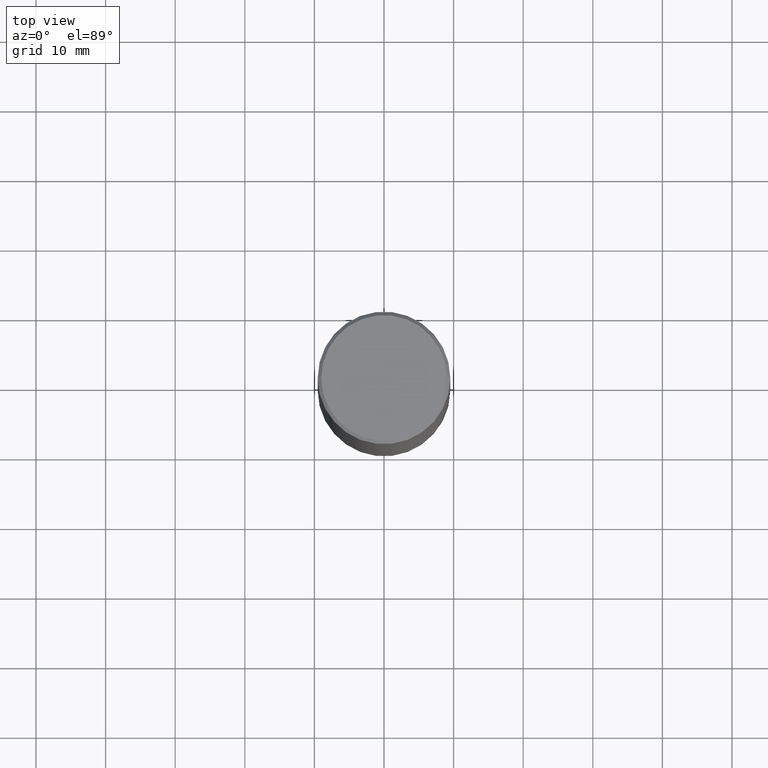
[diagram: clean part render]
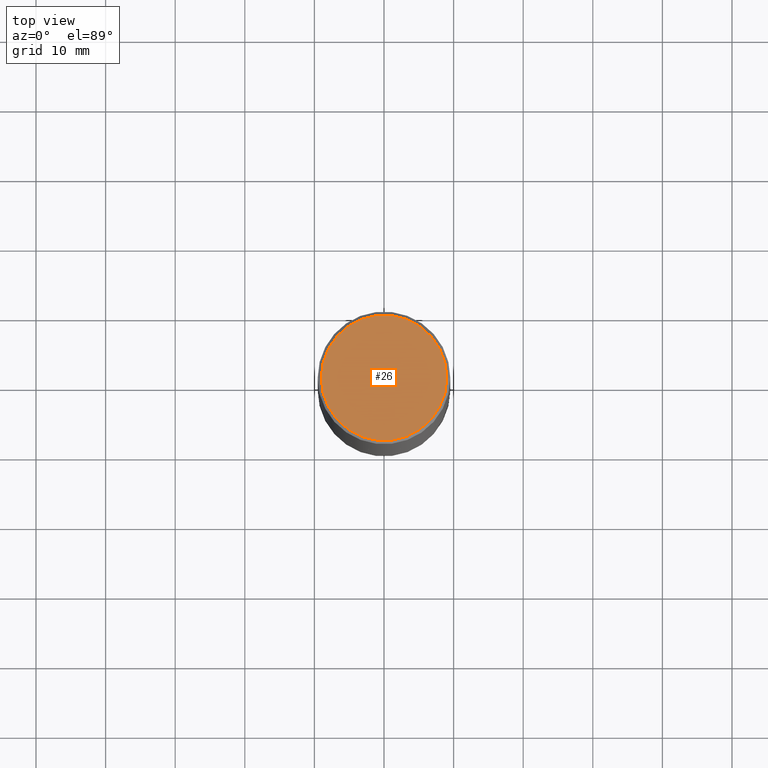
[diagram: same view with one face highlighted and labeled with its STEP entity id]
A machine part, top view. The second image highlights one B-rep face of the part: STEP entity #26.
In plain terms, the highlighted planar face has unit normal (0, -0, -1).
Its self-contained STEP definition (entity closure, byte-faithful):
#17 = VERTEX_POINT ( 'NONE', #165 ) ;
#18 = DIRECTION ( 'NONE',  ( -2.445468806185136597E-29, 3.491481338843145583E-15, 1.000000000000000000 ) ) ;
#23 = CARTESIAN_POINT ( 'NONE',  ( 2.478951750578617898E-15, 0.3549999999999990941, -1.237341619044263272E-15 ) ) ;
#26 = ADVANCED_FACE ( 'NONE', ( #209 ), #313, .F. ) ;
#52 = ORIENTED_EDGE ( 'NONE', *, *, #246, .T. ) ;
#65 = DIRECTION ( 'NONE',  ( -1.000000000000000000, 6.982962677686265922E-15, -4.876176775795935793E-29 ) ) ;
#91 = VERTEX_POINT ( 'NONE', #239 ) ;
#130 = CIRCLE ( 'NONE', #375, 0.3549999999999990941 ) ;
#138 = CARTESIAN_POINT ( 'NONE',  ( -1.043851414335219820E-46, 1.490343170380447200E-32, 4.268512490100411279E-18 ) ) ;
#149 = ORIENTED_EDGE ( 'NONE', *, *, #470, .T. ) ;
#158 = DIRECTION ( 'NONE',  ( 1.000000000000000000, -6.982962677686265133E-15, 4.876231632512000515E-29 ) ) ;
#165 = CARTESIAN_POINT ( 'NONE',  ( -0.3549999999999990941, 2.513866563967049547E-15, 4.268512490082953109E-18 ) ) ;
#203 = DIRECTION ( 'NONE',  ( 2.438088387897960049E-29, -3.491481338843145188E-15, -1.000000000000000000 ) ) ;
#206 = AXIS2_PLACEMENT_3D ( 'NONE', #138, #248, #282 ) ;
#209 = FACE_OUTER_BOUND ( 'NONE', #416, .T. ) ;
#239 = CARTESIAN_POINT ( 'NONE',  ( 0.3549999999999990941, -2.538996582575035132E-15, 4.268512490117958041E-18 ) ) ;
#246 = EDGE_CURVE ( 'NONE', #17, #91, #408, .T. ) ;
#248 = DIRECTION ( 'NONE',  ( -2.445468806185136597E-29, 3.491481338843145583E-15, 1.000000000000000000 ) ) ;
#282 = DIRECTION ( 'NONE',  ( 1.000000000000000000, -6.982962677686265133E-15, 4.876231632512000515E-29 ) ) ;
#313 = PLANE ( 'NONE',  #352 ) ;
#316 = CARTESIAN_POINT ( 'NONE',  ( -1.043851414335219820E-46, 1.490343170380447200E-32, 4.268512490100411279E-18 ) ) ;
#352 = AXIS2_PLACEMENT_3D ( 'NONE', #23, #203, #65 ) ;
#375 = AXIS2_PLACEMENT_3D ( 'NONE', #316, #18, #158 ) ;
#408 = CIRCLE ( 'NONE', #206, 0.3549999999999990941 ) ;
#416 = EDGE_LOOP ( 'NONE', ( #52, #149 ) ) ;
#470 = EDGE_CURVE ( 'NONE', #91, #17, #130, .T. ) ;